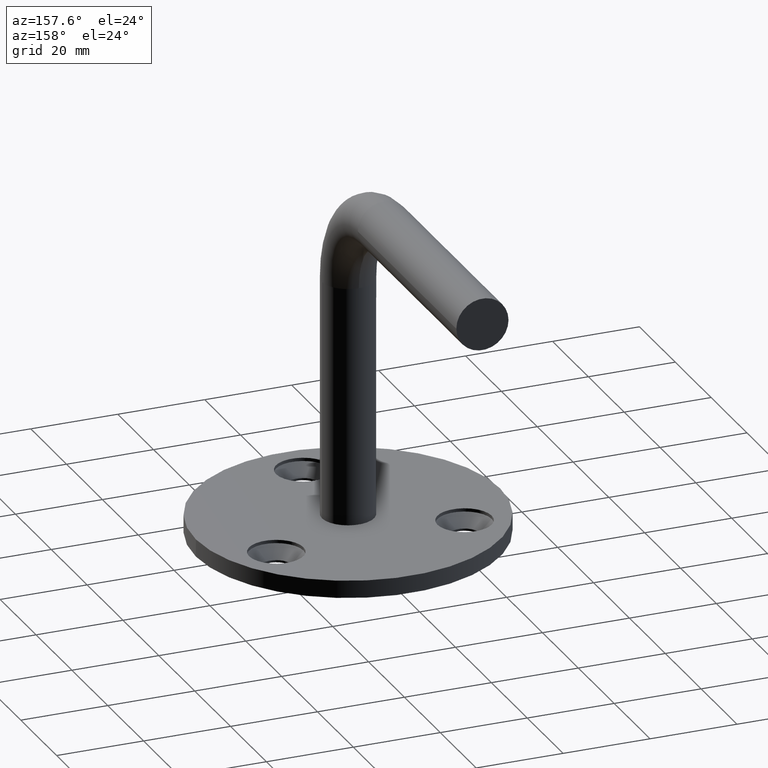
[diagram: clean part render]
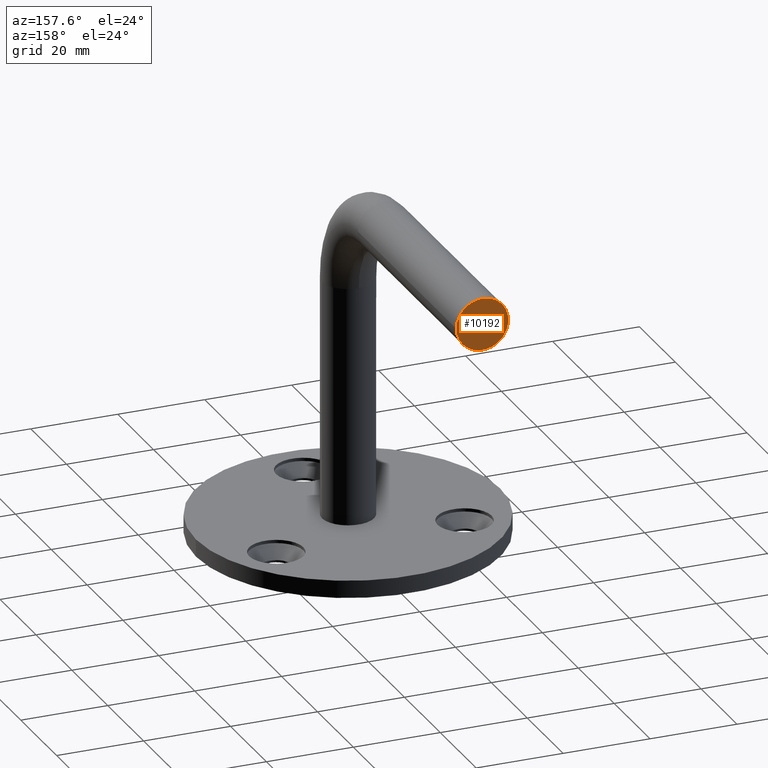
[diagram: same view with one face highlighted and labeled with its STEP entity id]
A machine part, auxiliary view. The second image highlights one B-rep face of the part: STEP entity #10192.
In plain terms, the highlighted planar face has unit normal (0, -1, 0).
Its self-contained STEP definition (entity closure, byte-faithful):
#94 = AXIS2_PLACEMENT_3D ( 'NONE', #11532, #4003, #11586 ) ;
#641 = VERTEX_POINT ( 'NONE', #7590 ) ;
#716 = VERTEX_POINT ( 'NONE', #11495 ) ;
#762 = EDGE_CURVE ( 'NONE', #716, #641, #11593, .T. ) ;
#1068 = DIRECTION ( 'NONE',  ( -1.000000000000000000, 0.0000000000000000000, 0.0000000000000000000 ) ) ;
#2499 = AXIS2_PLACEMENT_3D ( 'NONE', #14321, #9463, #5534 ) ;
#3478 = FACE_OUTER_BOUND ( 'NONE', #5468, .T. ) ;
#4003 = DIRECTION ( 'NONE',  ( 0.0000000000000000000, -1.000000000000000000, 1.608122649676636600E-016 ) ) ;
#5468 = EDGE_LOOP ( 'NONE', ( #8162, #16095 ) ) ;
#5534 = DIRECTION ( 'NONE',  ( -1.000000000000000000, 0.0000000000000000000, 0.0000000000000000000 ) ) ;
#7590 = CARTESIAN_POINT ( 'NONE',  ( 6.000000000000006200, 75.00000000000000000, 79.00000000000000000 ) ) ;
#7799 = PLANE ( 'NONE',  #94 ) ;
#8162 = ORIENTED_EDGE ( 'NONE', *, *, #762, .F. ) ;
#8589 = DIRECTION ( 'NONE',  ( 0.0000000000000000000, -1.000000000000000000, 1.608122649676636600E-016 ) ) ;
#9463 = DIRECTION ( 'NONE',  ( 0.0000000000000000000, -1.000000000000000000, 1.608122649676636600E-016 ) ) ;
#9673 = CARTESIAN_POINT ( 'NONE',  ( 4.837354856632045500E-015, 75.00000000000000000, 79.00000000000000000 ) ) ;
#10192 = ADVANCED_FACE ( 'NONE', ( #3478 ), #7799, .F. ) ;
#10905 = EDGE_CURVE ( 'NONE', #641, #716, #13285, .T. ) ;
#11495 = CARTESIAN_POINT ( 'NONE',  ( -5.999999999999995600, 75.00000000000000000, 79.00000000000000000 ) ) ;
#11532 = CARTESIAN_POINT ( 'NONE',  ( 4.837354856632045500E-015, 75.00000000000000000, 79.00000000000000000 ) ) ;
#11586 = DIRECTION ( 'NONE',  ( -1.000000000000000000, -0.0000000000000000000, 0.0000000000000000000 ) ) ;
#11593 = CIRCLE ( 'NONE', #16180, 6.000000000000000900 ) ;
#13285 = CIRCLE ( 'NONE', #2499, 6.000000000000000900 ) ;
#14321 = CARTESIAN_POINT ( 'NONE',  ( 4.837354856632045500E-015, 75.00000000000000000, 79.00000000000000000 ) ) ;
#16095 = ORIENTED_EDGE ( 'NONE', *, *, #10905, .F. ) ;
#16180 = AXIS2_PLACEMENT_3D ( 'NONE', #9673, #8589, #1068 ) ;